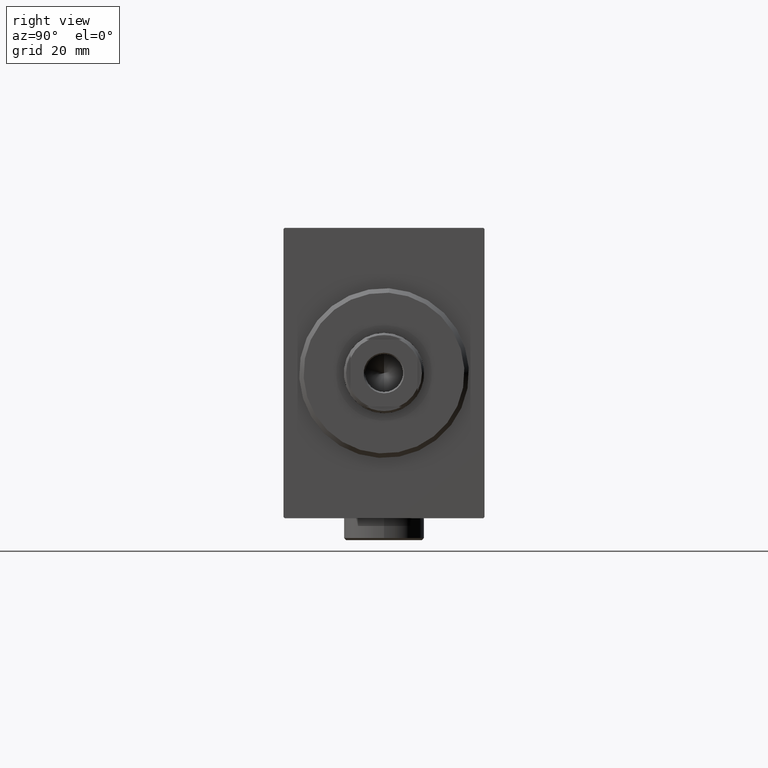
[diagram: clean part render]
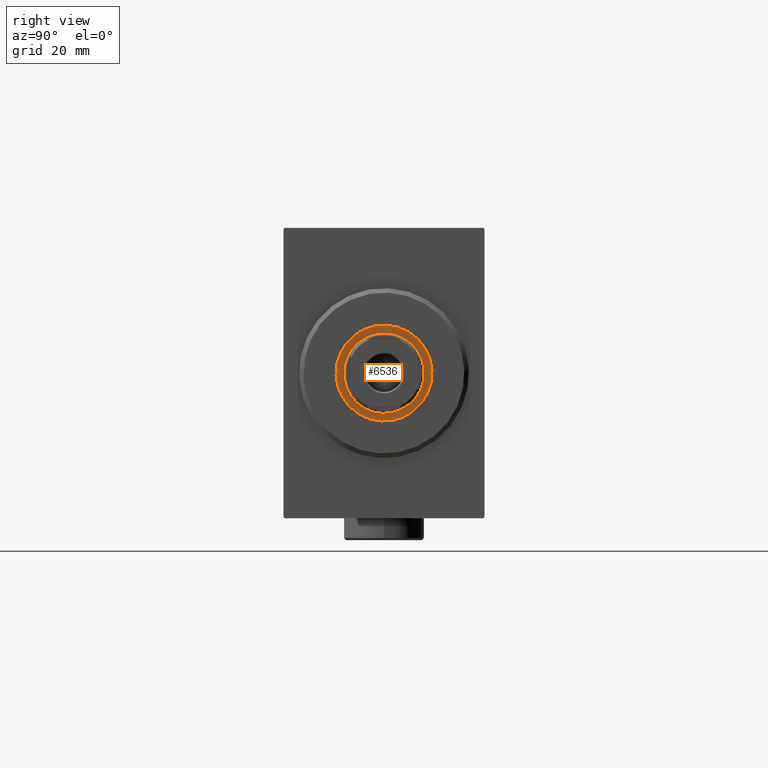
[diagram: same view with one face highlighted and labeled with its STEP entity id]
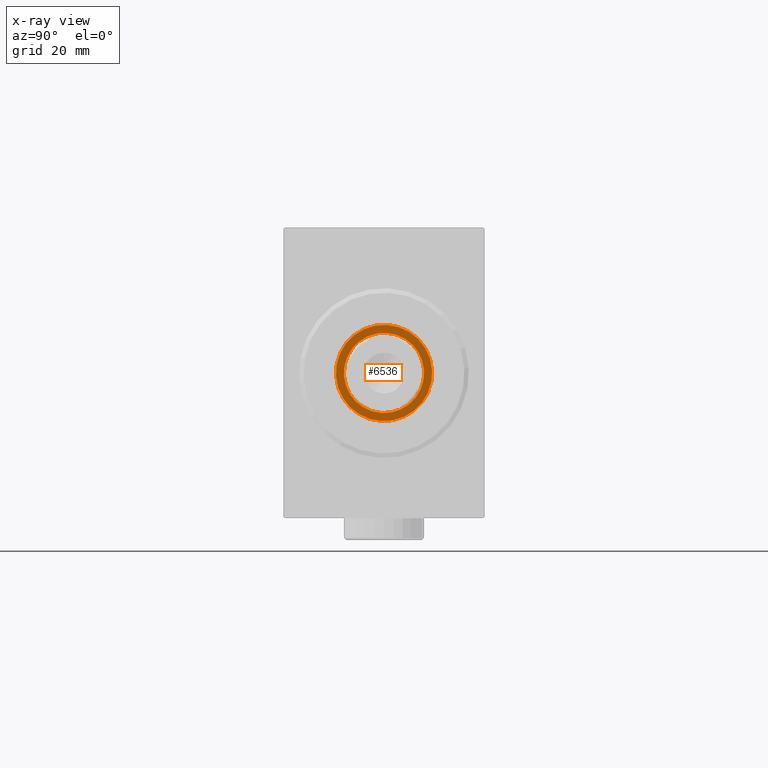
[diagram: x-ray of the same camera — body ghosted, the highlighted face saturated]
A machine part, right view. The second image highlights one B-rep face of the part: STEP entity #6536.
The next image is the same camera in x-ray: the body ghosted, the highlighted face saturated — about 0% of this face is hidden behind the body in this view.
In plain terms, the highlighted planar face has unit normal (1, -0, -0).
Its self-contained STEP definition (entity closure, byte-faithful):
#2334 = PLANE ( 'NONE',  #11171 ) ;
#2901 = VERTEX_POINT ( 'NONE', #42938 ) ;
#4710 = DIRECTION ( 'NONE',  ( 0.000000000000000000, 0.000000000000000000, -1.000000000000000000 ) ) ;
#5139 = DIRECTION ( 'NONE',  ( 0.000000000000000000, 0.000000000000000000, -1.000000000000000000 ) ) ;
#5187 = DIRECTION ( 'NONE',  ( 0.000000000000000000, 0.000000000000000000, -1.000000000000000000 ) ) ;
#5929 = DIRECTION ( 'NONE',  ( 0.000000000000000000, 0.000000000000000000, -1.000000000000000000 ) ) ;
#6333 = VERTEX_POINT ( 'NONE', #31193 ) ;
#6536 = ADVANCED_FACE ( 'NONE', ( #25756, #39934 ), #2334, .T. ) ;
#7924 = ORIENTED_EDGE ( 'NONE', *, *, #16639, .T. ) ;
#10227 = AXIS2_PLACEMENT_3D ( 'NONE', #42576, #18038, #5187 ) ;
#11171 = AXIS2_PLACEMENT_3D ( 'NONE', #12690, #22370, #5929 ) ;
#12690 = CARTESIAN_POINT ( 'NONE',  ( 2.500000000000000000, 0.000000000000000000, 0.000000000000000000 ) ) ;
#13673 = EDGE_CURVE ( 'NONE', #15458, #36353, #38903, .T. ) ;
#14204 = ORIENTED_EDGE ( 'NONE', *, *, #24468, .F. ) ;
#14399 = CARTESIAN_POINT ( 'NONE',  ( 2.500000000000000000, 0.000000000000000000, 0.000000000000000000 ) ) ;
#14985 = ORIENTED_EDGE ( 'NONE', *, *, #13673, .F. ) ;
#15058 = DIRECTION ( 'NONE',  ( 1.000000000000000000, 0.000000000000000000, 0.000000000000000000 ) ) ;
#15458 = VERTEX_POINT ( 'NONE', #24453 ) ;
#16639 = EDGE_CURVE ( 'NONE', #2901, #6333, #26033, .T. ) ;
#17780 = CIRCLE ( 'NONE', #22080, 10.75000000000000000 ) ;
#18038 = DIRECTION ( 'NONE',  ( 1.000000000000000000, 0.000000000000000000, 0.000000000000000000 ) ) ;
#19493 = AXIS2_PLACEMENT_3D ( 'NONE', #34709, #20533, #20758 ) ;
#20533 = DIRECTION ( 'NONE',  ( 1.000000000000000000, 0.000000000000000000, 0.000000000000000000 ) ) ;
#20758 = DIRECTION ( 'NONE',  ( 0.000000000000000000, 0.000000000000000000, -1.000000000000000000 ) ) ;
#22080 = AXIS2_PLACEMENT_3D ( 'NONE', #14399, #42099, #4710 ) ;
#22251 = CARTESIAN_POINT ( 'NONE',  ( 2.500000000000000444, 0.000000000000000000, 0.000000000000000000 ) ) ;
#22370 = DIRECTION ( 'NONE',  ( 1.000000000000000000, 0.000000000000000000, 0.000000000000000000 ) ) ;
#23988 = ORIENTED_EDGE ( 'NONE', *, *, #35199, .T. ) ;
#24453 = CARTESIAN_POINT ( 'NONE',  ( 2.500000000000000444, 0.000000000000000000, -9.000000000000000000 ) ) ;
#24468 = EDGE_CURVE ( 'NONE', #36353, #15458, #31894, .T. ) ;
#25756 = FACE_BOUND ( 'NONE', #35689, .T. ) ;
#26033 = CIRCLE ( 'NONE', #10227, 10.75000000000000000 ) ;
#28669 = EDGE_LOOP ( 'NONE', ( #23988, #7924 ) ) ;
#31193 = CARTESIAN_POINT ( 'NONE',  ( 2.500000000000000000, 0.000000000000000000, -10.75000000000000000 ) ) ;
#31894 = CIRCLE ( 'NONE', #34027, 9.000000000000000000 ) ;
#34027 = AXIS2_PLACEMENT_3D ( 'NONE', #22251, #15058, #5139 ) ;
#34709 = CARTESIAN_POINT ( 'NONE',  ( 2.500000000000000444, 0.000000000000000000, 0.000000000000000000 ) ) ;
#35199 = EDGE_CURVE ( 'NONE', #6333, #2901, #17780, .T. ) ;
#35689 = EDGE_LOOP ( 'NONE', ( #14985, #14204 ) ) ;
#36228 = CARTESIAN_POINT ( 'NONE',  ( 2.500000000000000444, 1.102182119232617714E-15, 9.000000000000000000 ) ) ;
#36353 = VERTEX_POINT ( 'NONE', #36228 ) ;
#38903 = CIRCLE ( 'NONE', #19493, 9.000000000000000000 ) ;
#39934 = FACE_OUTER_BOUND ( 'NONE', #28669, .T. ) ;
#42099 = DIRECTION ( 'NONE',  ( 1.000000000000000000, 0.000000000000000000, 0.000000000000000000 ) ) ;
#42576 = CARTESIAN_POINT ( 'NONE',  ( 2.500000000000000000, 0.000000000000000000, 0.000000000000000000 ) ) ;
#42938 = CARTESIAN_POINT ( 'NONE',  ( 2.500000000000000000, 1.316495309083404618E-15, 10.75000000000000000 ) ) ;